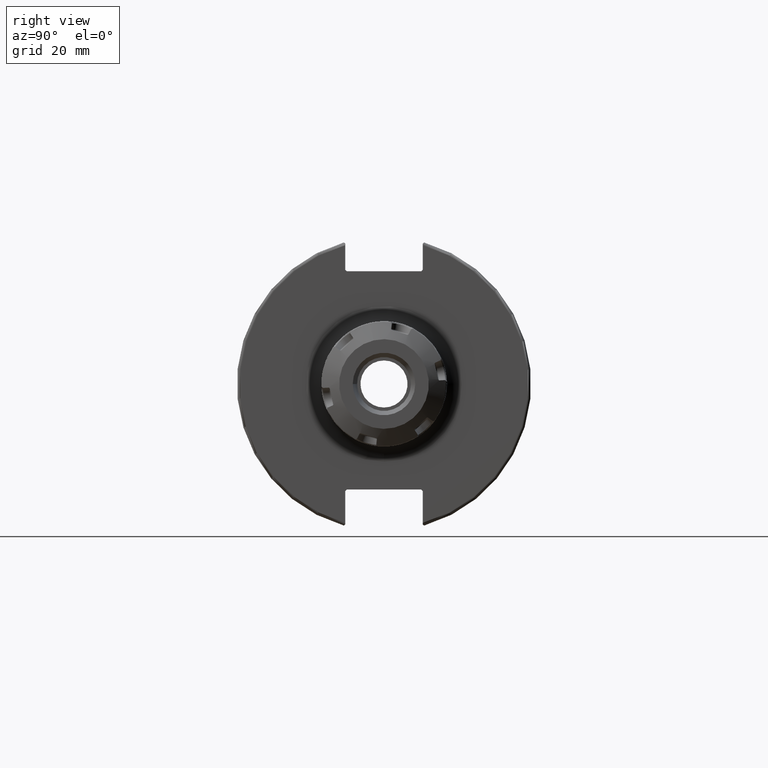
[diagram: clean part render]
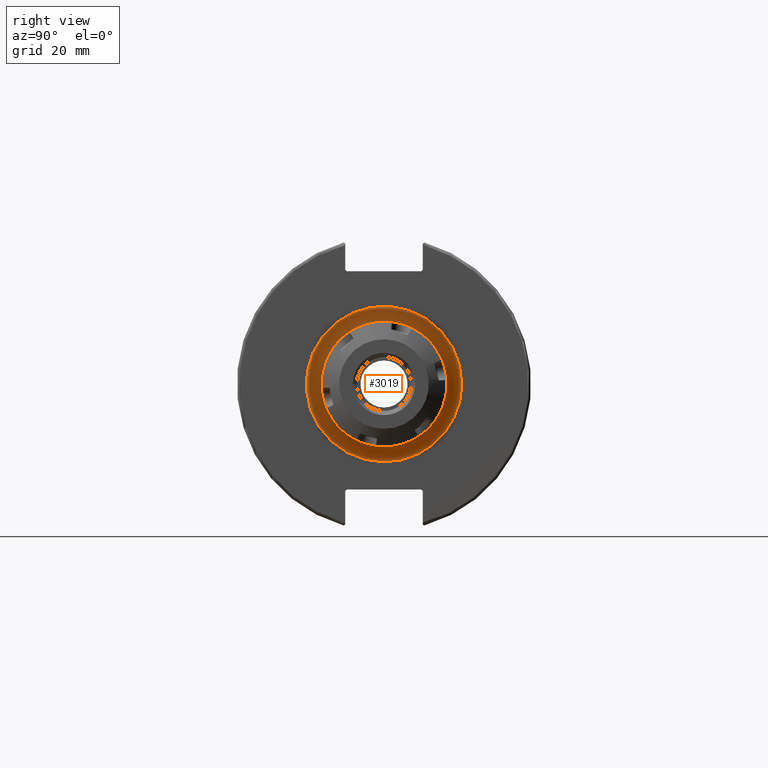
[diagram: same view with one face highlighted and labeled with its STEP entity id]
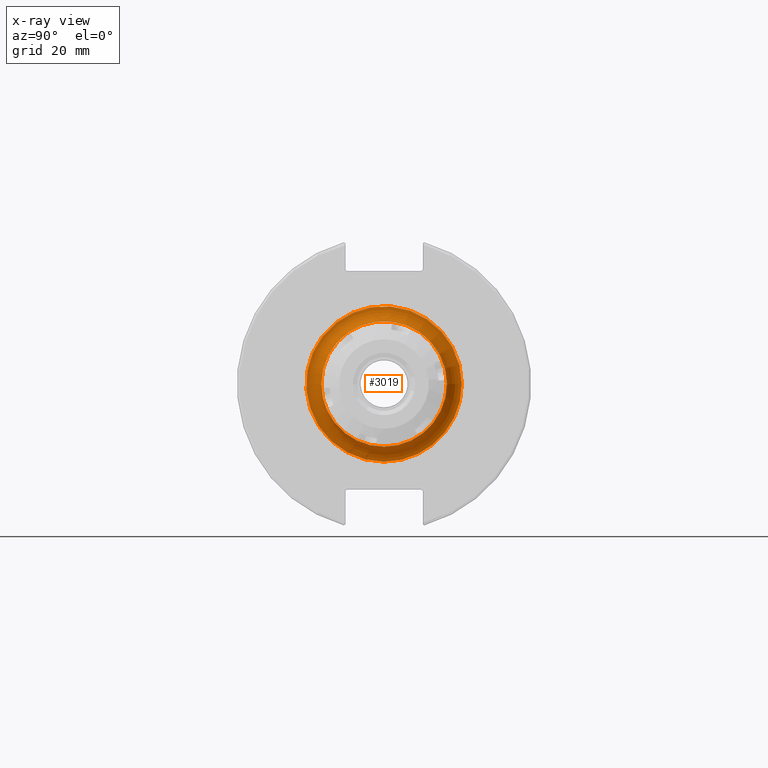
[diagram: x-ray of the same camera — body ghosted, the highlighted face saturated]
A machine part, right view. The second image highlights one B-rep face of the part: STEP entity #3019.
The next image is the same camera in x-ray: the body ghosted, the highlighted face saturated — about 1% of this face is hidden behind the body in this view.
In plain terms, the highlighted toroidal blend (fillet) surface has major radius 26 mm and minor (blend) radius 5 mm.
Its self-contained STEP definition (entity closure, byte-faithful):
#54=TOROIDAL_SURFACE('',#3282,26.,5.);
#299=FACE_OUTER_BOUND('',#473,.T.);
#473=EDGE_LOOP('',(#2080,#2081,#2082,#2083,#2084,#2085,#2086));
#1047=CIRCLE('',#3271,21.);
#1048=CIRCLE('',#3272,21.);
#1049=CIRCLE('',#3273,21.);
#1056=CIRCLE('',#3283,5.);
#1057=CIRCLE('',#3284,26.);
#1058=CIRCLE('',#3285,26.);
#1232=VERTEX_POINT('',#4658);
#1233=VERTEX_POINT('',#4660);
#1234=VERTEX_POINT('',#4662);
#1240=VERTEX_POINT('',#4680);
#1241=VERTEX_POINT('',#4682);
#1564=EDGE_CURVE('',#1233,#1232,#1047,.T.);
#1565=EDGE_CURVE('',#1234,#1233,#1048,.T.);
#1566=EDGE_CURVE('',#1232,#1234,#1049,.T.);
#1574=EDGE_CURVE('',#1233,#1240,#1056,.T.);
#1575=EDGE_CURVE('',#1240,#1241,#1057,.T.);
#1576=EDGE_CURVE('',#1241,#1240,#1058,.T.);
#2080=ORIENTED_EDGE('',*,*,#1565,.T.);
#2081=ORIENTED_EDGE('',*,*,#1574,.T.);
#2082=ORIENTED_EDGE('',*,*,#1575,.T.);
#2083=ORIENTED_EDGE('',*,*,#1576,.T.);
#2084=ORIENTED_EDGE('',*,*,#1574,.F.);
#2085=ORIENTED_EDGE('',*,*,#1564,.T.);
#2086=ORIENTED_EDGE('',*,*,#1566,.T.);
#3019=ADVANCED_FACE('',(#299),#54,.F.);
#3271=AXIS2_PLACEMENT_3D('',#4661,#3660,#3661);
#3272=AXIS2_PLACEMENT_3D('',#4663,#3662,#3663);
#3273=AXIS2_PLACEMENT_3D('',#4664,#3664,#3665);
#3282=AXIS2_PLACEMENT_3D('',#4679,#3683,#3684);
#3283=AXIS2_PLACEMENT_3D('',#4681,#3685,#3686);
#3284=AXIS2_PLACEMENT_3D('',#4683,#3687,#3688);
#3285=AXIS2_PLACEMENT_3D('',#4684,#3689,#3690);
#3660=DIRECTION('center_axis',(-1.,0.,0.));
#3661=DIRECTION('ref_axis',(0.,-1.,-1.22464679914735E-16));
#3662=DIRECTION('center_axis',(-1.,0.,0.));
#3663=DIRECTION('ref_axis',(0.,-1.,-1.22464679914735E-16));
#3664=DIRECTION('center_axis',(-1.,0.,0.));
#3665=DIRECTION('ref_axis',(0.,-1.,-1.22464679914735E-16));
#3683=DIRECTION('center_axis',(-1.,0.,0.));
#3684=DIRECTION('ref_axis',(0.,0.,1.));
#3685=DIRECTION('center_axis',(0.,-1.,1.22464679914735E-16));
#3686=DIRECTION('ref_axis',(0.,-1.22464679914735E-16,-1.));
#3687=DIRECTION('center_axis',(1.,0.,0.));
#3688=DIRECTION('ref_axis',(0.,-1.,-1.22464679914735E-16));
#3689=DIRECTION('center_axis',(1.,0.,0.));
#3690=DIRECTION('ref_axis',(0.,-1.,-1.22464679914735E-16));
#4658=CARTESIAN_POINT('',(24.05,-21.,-2.57175827820944E-15));
#4660=CARTESIAN_POINT('',(24.05,-2.57175827820944E-15,-21.));
#4661=CARTESIAN_POINT('Origin',(24.05,0.,0.));
#4662=CARTESIAN_POINT('',(24.05,21.,0.));
#4663=CARTESIAN_POINT('Origin',(24.05,0.,0.));
#4664=CARTESIAN_POINT('Origin',(24.05,0.,0.));
#4679=CARTESIAN_POINT('Origin',(24.05,0.,0.));
#4680=CARTESIAN_POINT('',(19.05,-3.18408167778312E-15,-26.));
#4681=CARTESIAN_POINT('Origin',(24.05,-3.18408167778312E-15,-26.));
#4682=CARTESIAN_POINT('',(19.05,26.,6.36816335556624E-15));
#4683=CARTESIAN_POINT('Origin',(19.05,0.,0.));
#4684=CARTESIAN_POINT('Origin',(19.05,0.,0.));